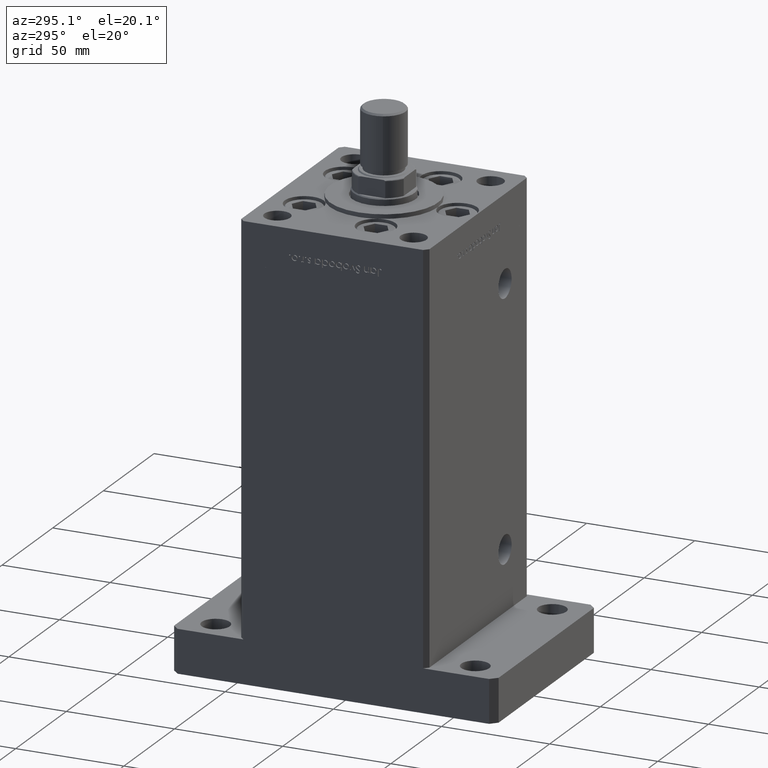
[diagram: clean part render]
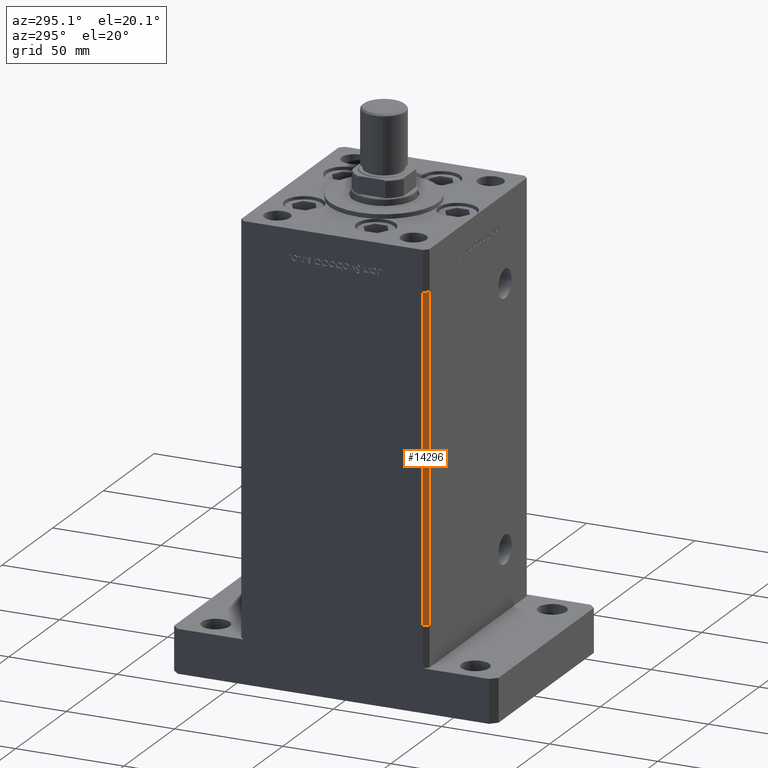
[diagram: same view with one face highlighted and labeled with its STEP entity id]
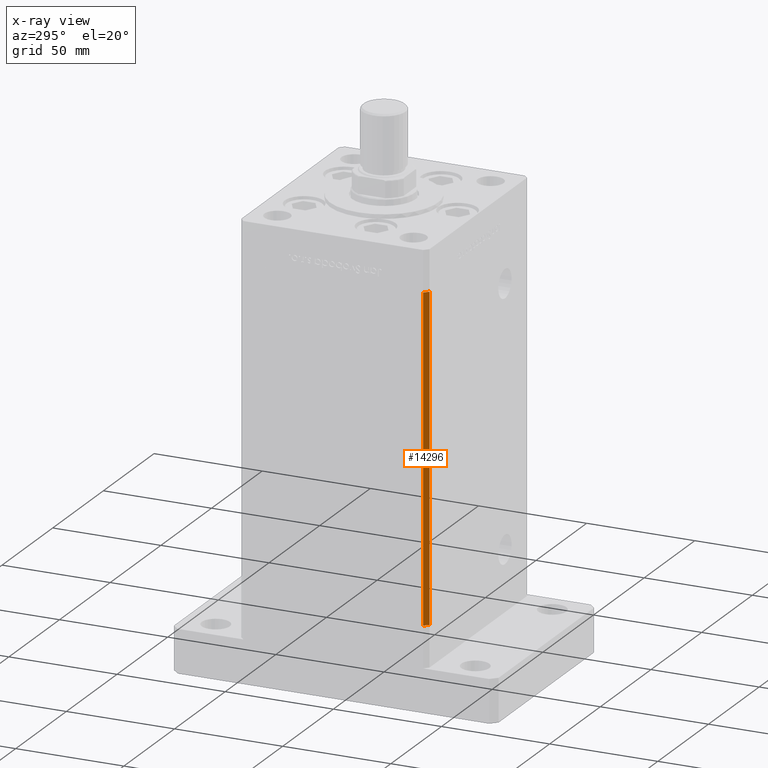
[diagram: x-ray of the same camera — body ghosted, the highlighted face saturated]
A machine part, auxiliary view. The second image highlights one B-rep face of the part: STEP entity #14296.
The next image is the same camera in x-ray: the body ghosted, the highlighted face saturated — about 0% of this face is hidden behind the body in this view.
In plain terms, the highlighted planar face has unit normal (0.7071, 0.7071, 0).
Its self-contained STEP definition (entity closure, byte-faithful):
#1219 = DIRECTION ( 'NONE',  ( -0.000000000000000000, -0.000000000000000000, -1.000000000000000000 ) ) ;
#2931 = CARTESIAN_POINT ( 'NONE',  ( -49.99999999999998579, -41.49999999999999289, 0.000000000000000000 ) ) ;
#3198 = DIRECTION ( 'NONE',  ( 0.7071067811865474617, -0.7071067811865474617, 0.000000000000000000 ) ) ;
#4047 = VECTOR ( 'NONE', #3198, 1000.000000000000114 ) ;
#6433 = EDGE_CURVE ( 'NONE', #33220, #35582, #13665, .T. ) ;
#6832 = AXIS2_PLACEMENT_3D ( 'NONE', #28632, #44796, #23983 ) ;
#6869 = CARTESIAN_POINT ( 'NONE',  ( -47.99999999999998579, -43.50000000000000000, 148.5000000000000000 ) ) ;
#6982 = VERTEX_POINT ( 'NONE', #10778 ) ;
#8733 = DIRECTION ( 'NONE',  ( 0.7071067811865474617, -0.7071067811865474617, 0.000000000000000000 ) ) ;
#10131 = ORIENTED_EDGE ( 'NONE', *, *, #22446, .F. ) ;
#10778 = CARTESIAN_POINT ( 'NONE',  ( -49.99999999999998579, -41.49999999999999289, 0.000000000000000000 ) ) ;
#13665 = LINE ( 'NONE', #22137, #42503 ) ;
#14296 = ADVANCED_FACE ( 'NONE', ( #32475 ), #20161, .F. ) ;
#14385 = CARTESIAN_POINT ( 'NONE',  ( -49.99999999999998579, -41.49999999999999289, 148.5000000000000000 ) ) ;
#16202 = ORIENTED_EDGE ( 'NONE', *, *, #6433, .F. ) ;
#17182 = LINE ( 'NONE', #22093, #30983 ) ;
#18195 = EDGE_LOOP ( 'NONE', ( #43584, #10131, #16202, #35421 ) ) ;
#20161 = PLANE ( 'NONE',  #6832 ) ;
#21374 = CARTESIAN_POINT ( 'NONE',  ( -49.99999999999998579, -41.49999999999999289, 148.5000000000000000 ) ) ;
#22093 = CARTESIAN_POINT ( 'NONE',  ( -47.99999999999998579, -43.50000000000000000, 148.5000000000000000 ) ) ;
#22137 = CARTESIAN_POINT ( 'NONE',  ( -49.99999999999998579, -41.49999999999999289, 148.5000000000000000 ) ) ;
#22446 = EDGE_CURVE ( 'NONE', #35582, #50347, #17182, .T. ) ;
#23983 = DIRECTION ( 'NONE',  ( -0.7071067811865474617, 0.7071067811865474617, 0.000000000000000000 ) ) ;
#27283 = EDGE_CURVE ( 'NONE', #33220, #6982, #39293, .T. ) ;
#28632 = CARTESIAN_POINT ( 'NONE',  ( -49.99999999999998579, -41.49999999999999289, 148.5000000000000000 ) ) ;
#30576 = DIRECTION ( 'NONE',  ( -0.000000000000000000, -0.000000000000000000, -1.000000000000000000 ) ) ;
#30943 = CARTESIAN_POINT ( 'NONE',  ( -47.99999999999998579, -43.50000000000000000, 0.000000000000000000 ) ) ;
#30983 = VECTOR ( 'NONE', #30576, 1000.000000000000000 ) ;
#31140 = VECTOR ( 'NONE', #1219, 1000.000000000000000 ) ;
#32475 = FACE_OUTER_BOUND ( 'NONE', #18195, .T. ) ;
#33220 = VERTEX_POINT ( 'NONE', #21374 ) ;
#33676 = EDGE_CURVE ( 'NONE', #6982, #50347, #52735, .T. ) ;
#35421 = ORIENTED_EDGE ( 'NONE', *, *, #27283, .T. ) ;
#35582 = VERTEX_POINT ( 'NONE', #6869 ) ;
#39293 = LINE ( 'NONE', #14385, #31140 ) ;
#42503 = VECTOR ( 'NONE', #8733, 1000.000000000000114 ) ;
#43584 = ORIENTED_EDGE ( 'NONE', *, *, #33676, .T. ) ;
#44796 = DIRECTION ( 'NONE',  ( 0.7071067811865475727, 0.7071067811865475727, -0.000000000000000000 ) ) ;
#50347 = VERTEX_POINT ( 'NONE', #30943 ) ;
#52735 = LINE ( 'NONE', #2931, #4047 ) ;